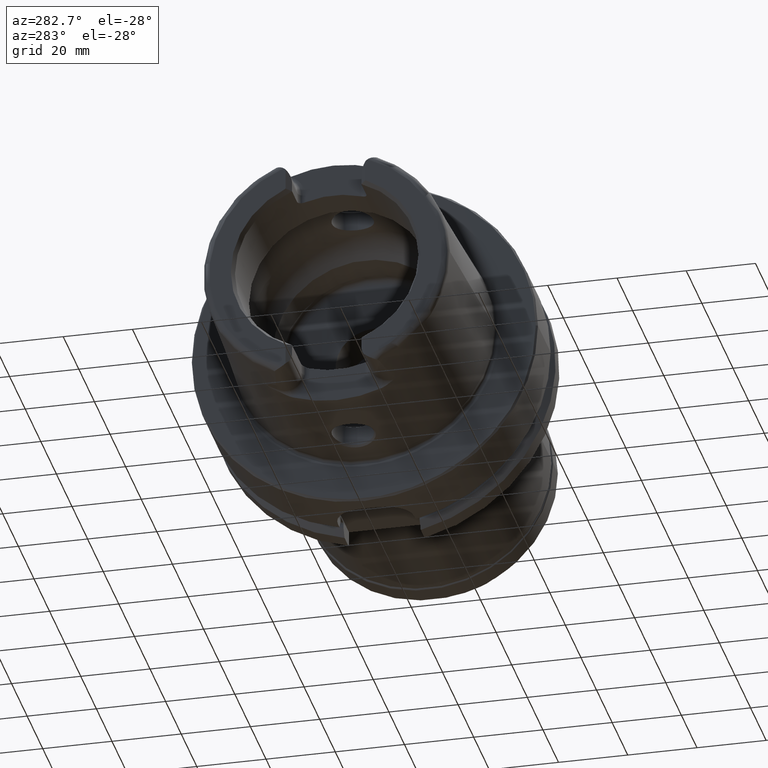
[diagram: clean part render]
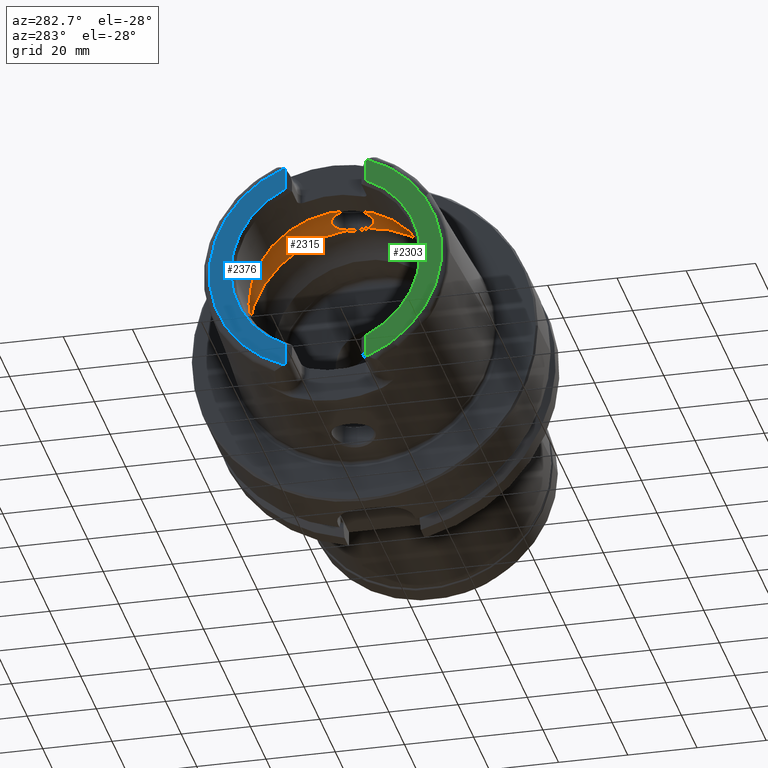
[diagram: same view with three faces highlighted in distinct colors, each labeled with its STEP entity id]
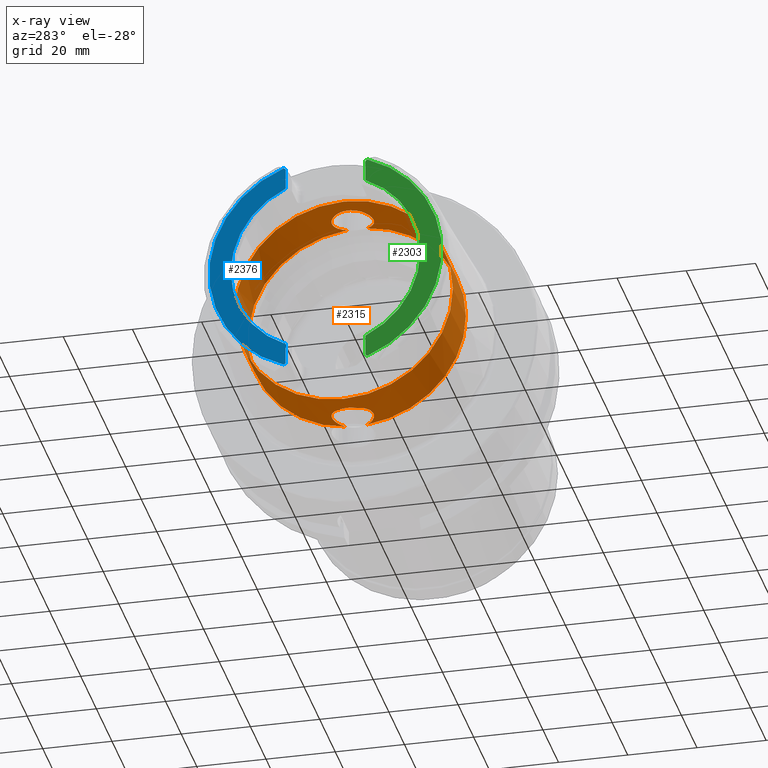
[diagram: x-ray of the same camera — body ghosted, the three highlighted faces saturated]
A machine part, auxiliary view with three faces highlighted in distinct colors.
The next image is the same camera in x-ray (body ghosted, the three faces saturated) — at least one of them is partly hidden behind the body in this view.
Their STEP definitions:

[orange] entity #2315 — the highlighted cylindrical surface (bore or boss wall) has radius 31.5 mm, axis along (-1, 0, 0).
#49=B_SPLINE_CURVE_WITH_KNOTS('',3,(#4149,#4150,#4151,#4152,#4153,#4154,
#4155,#4156,#4157,#4158,#4159,#4160,#4161,#4162,#4163,#4164,#4165,#4166,
#4167,#4168,#4169,#4170,#4171,#4172,#4173,#4174,#4175,#4176,#4177,#4178,
#4179),.UNSPECIFIED.,.F.,.F.,(4,2,2,2,2,2,2,2,2,2,2,3,2,2,4),(-2.42966289251045,
-2.26609494287567,-2.03948128472637,-1.81286762657707,-1.58625396842777,
-1.35964031027847,-1.1330370617835,-0.906433813288535,-0.679830564793567,
-0.453227316298599,-0.226613658149299,0.,0.2266136581493,0.453227316298599,
0.616795265988555),.UNSPECIFIED.);
#54=B_SPLINE_CURVE_WITH_KNOTS('',3,(#4341,#4342,#4343,#4344,#4345,#4346,
#4347,#4348,#4349,#4350,#4351,#4352,#4353,#4354,#4355,#4356,#4357,#4358,
#4359,#4360,#4361,#4362,#4363,#4364,#4365,#4366,#4367,#4368,#4369,#4370,
#4371),.UNSPECIFIED.,.F.,.F.,(4,2,2,3,2,2,2,2,2,2,2,2,2,2,4),(-0.616795265933374,
-0.453227316298598,-0.226613658149299,0.,0.2266136581493,0.453227316298599,
0.679830564793567,0.906433813288535,1.1330370617835,1.35964031027847,1.58625396842777,
1.81286762657707,2.03948128472637,2.26609494287567,2.42966289256562),
 .UNSPECIFIED.);
#203=LINE('',#4389,#312);
#312=VECTOR('',#3046,31.5);
#389=CYLINDRICAL_SURFACE('',#2548,31.5);
#453=FACE_OUTER_BOUND('',#583,.T.);
#583=EDGE_LOOP('',(#1760,#1761,#1762,#1763,#1764,#1765,#1766,#1767,#1768,
#1769));
#756=CIRCLE('',#2549,31.5);
#757=CIRCLE('',#2550,31.5);
#758=CIRCLE('',#2551,31.5);
#759=CIRCLE('',#2552,31.5);
#760=CIRCLE('',#2553,31.5);
#761=CIRCLE('',#2554,31.5);
#982=VERTEX_POINT('',#4137);
#983=VERTEX_POINT('',#4148);
#986=VERTEX_POINT('',#4328);
#988=VERTEX_POINT('',#4340);
#990=VERTEX_POINT('',#4386);
#991=VERTEX_POINT('',#4388);
#992=VERTEX_POINT('',#4390);
#993=VERTEX_POINT('',#4392);
#1273=EDGE_CURVE('',#983,#982,#49,.T.);
#1279=EDGE_CURVE('',#988,#986,#54,.T.);
#1283=EDGE_CURVE('',#990,#986,#756,.T.);
#1284=EDGE_CURVE('',#990,#991,#203,.T.);
#1285=EDGE_CURVE('',#991,#992,#757,.T.);
#1286=EDGE_CURVE('',#992,#993,#758,.T.);
#1287=EDGE_CURVE('',#993,#991,#759,.T.);
#1288=EDGE_CURVE('',#983,#990,#760,.T.);
#1289=EDGE_CURVE('',#988,#982,#761,.T.);
#1760=ORIENTED_EDGE('',*,*,#1279,.T.);
#1761=ORIENTED_EDGE('',*,*,#1283,.F.);
#1762=ORIENTED_EDGE('',*,*,#1284,.T.);
#1763=ORIENTED_EDGE('',*,*,#1285,.T.);
#1764=ORIENTED_EDGE('',*,*,#1286,.T.);
#1765=ORIENTED_EDGE('',*,*,#1287,.T.);
#1766=ORIENTED_EDGE('',*,*,#1284,.F.);
#1767=ORIENTED_EDGE('',*,*,#1288,.F.);
#1768=ORIENTED_EDGE('',*,*,#1273,.T.);
#1769=ORIENTED_EDGE('',*,*,#1289,.F.);
#2315=ADVANCED_FACE('',(#453),#389,.F.);
#2548=AXIS2_PLACEMENT_3D('',#4385,#3042,#3043);
#2549=AXIS2_PLACEMENT_3D('',#4387,#3044,#3045);
#2550=AXIS2_PLACEMENT_3D('',#4391,#3047,#3048);
#2551=AXIS2_PLACEMENT_3D('',#4393,#3049,#3050);
#2552=AXIS2_PLACEMENT_3D('',#4394,#3051,#3052);
#2553=AXIS2_PLACEMENT_3D('',#4395,#3053,#3054);
#2554=AXIS2_PLACEMENT_3D('',#4396,#3055,#3056);
#3042=DIRECTION('center_axis',(-1.,0.,0.));
#3043=DIRECTION('ref_axis',(0.,1.,0.));
#3044=DIRECTION('center_axis',(-1.,0.,0.));
#3045=DIRECTION('ref_axis',(0.,0.,1.));
#3046=DIRECTION('',(-1.,0.,0.));
#3047=DIRECTION('center_axis',(-1.,0.,0.));
#3048=DIRECTION('ref_axis',(0.,0.,1.));
#3049=DIRECTION('center_axis',(-1.,0.,0.));
#3050=DIRECTION('ref_axis',(0.,0.,1.));
#3051=DIRECTION('center_axis',(-1.,0.,0.));
#3052=DIRECTION('ref_axis',(0.,0.,1.));
#3053=DIRECTION('center_axis',(-1.,0.,0.));
#3054=DIRECTION('ref_axis',(0.,0.,1.));
#3055=DIRECTION('center_axis',(-1.,0.,0.));
#3056=DIRECTION('ref_axis',(0.,0.,1.));
#4137=CARTESIAN_POINT('',(-9.74679434480896,2.89893607109041,-31.3663222207471));
#4148=CARTESIAN_POINT('',(-9.74679434480896,-2.89893607109041,-31.3663222207471));
#4149=CARTESIAN_POINT('Ctrl Pts',(-9.74679434480898,-2.8989360710904,-31.3663222207471));
#4150=CARTESIAN_POINT('Ctrl Pts',(-10.0245557799842,-3.40227174537722,-31.3198029657389));
#4151=CARTESIAN_POINT('Ctrl Pts',(-10.3735944692601,-3.85887584349869,-31.2651415110221));
#4152=CARTESIAN_POINT('Ctrl Pts',(-11.289042660848,-4.77432403508655,-31.140708727458));
#4153=CARTESIAN_POINT('Ctrl Pts',(-11.9624834305428,-5.23577180141274,-31.0633803744766));
#4154=CARTESIAN_POINT('Ctrl Pts',(-13.4401908644727,-5.84865855662958,-30.9538382316308));
#4155=CARTESIAN_POINT('Ctrl Pts',(-14.2446211395023,-6.00000000000001,-30.9232921921325));
#4156=CARTESIAN_POINT('Ctrl Pts',(-15.7553788604977,-6.00000000000001,-30.9232921921325));
#4157=CARTESIAN_POINT('Ctrl Pts',(-16.5598091355273,-5.84865855662958,-30.9538382316308));
#4158=CARTESIAN_POINT('Ctrl Pts',(-18.0375165694572,-5.23577180141275,-31.0633803744766));
#4159=CARTESIAN_POINT('Ctrl Pts',(-18.710957339152,-4.77432403508655,-31.140708727458));
#4160=CARTESIAN_POINT('Ctrl Pts',(-19.7742996118461,-3.71098176239249,-31.2852440928545));
#4161=CARTESIAN_POINT('Ctrl Pts',(-20.2357665181958,-3.03753058698362,-31.3619556484746));
#4162=CARTESIAN_POINT('Ctrl Pts',(-20.8486671603361,-1.55978711209124,-31.4700797313679));
#4163=CARTESIAN_POINT('Ctrl Pts',(-21.,-0.755344161649895,-31.5));
#4164=CARTESIAN_POINT('Ctrl Pts',(-21.,0.755344161649892,-31.5));
#4165=CARTESIAN_POINT('Ctrl Pts',(-20.8486671603361,1.55978711209124,-31.4700797313679));
#4166=CARTESIAN_POINT('Ctrl Pts',(-20.2357665181958,3.03753058698362,-31.3619556484746));
#4167=CARTESIAN_POINT('Ctrl Pts',(-19.7742996118461,3.71098176239249,-31.2852440928545));
#4168=CARTESIAN_POINT('Ctrl Pts',(-18.710957339152,4.77432403508655,-31.140708727458));
#4169=CARTESIAN_POINT('Ctrl Pts',(-18.0375165694572,5.23577180141274,-31.0633803744766));
#4170=CARTESIAN_POINT('Ctrl Pts',(-16.5598091355273,5.84865855662958,-30.9538382316308));
#4171=CARTESIAN_POINT('Ctrl Pts',(-15.7553788604977,6.00000000000001,-30.9232921921325));
#4172=CARTESIAN_POINT('Ctrl Pts',(-15.,6.00000000000001,-30.9232921921325));
#4173=CARTESIAN_POINT('Ctrl Pts',(-14.2446211395023,6.00000000000001,-30.9232921921325));
#4174=CARTESIAN_POINT('Ctrl Pts',(-13.4401908644727,5.84865855662958,-30.9538382316308));
#4175=CARTESIAN_POINT('Ctrl Pts',(-11.9624834305428,5.23577180141274,-31.0633803744766));
#4176=CARTESIAN_POINT('Ctrl Pts',(-11.289042660848,4.77432403508655,-31.140708727458));
#4177=CARTESIAN_POINT('Ctrl Pts',(-10.3735944691306,3.85887584336922,-31.2651415110397));
#4178=CARTESIAN_POINT('Ctrl Pts',(-10.0245557801354,3.40227174565105,-31.3198029657135));
#4179=CARTESIAN_POINT('Ctrl Pts',(-9.74679434480898,2.8989360710904,-31.3663222207471));
#4328=CARTESIAN_POINT('',(-9.74679434480896,-2.89893607109042,31.3663222207471));
#4340=CARTESIAN_POINT('',(-9.74679434480896,2.89893607109042,31.3663222207471));
#4341=CARTESIAN_POINT('Ctrl Pts',(-9.74679434480897,2.89893607109041,31.3663222207471));
#4342=CARTESIAN_POINT('Ctrl Pts',(-10.0245557799842,3.40227174537723,31.3198029657389));
#4343=CARTESIAN_POINT('Ctrl Pts',(-10.3735944692601,3.85887584349869,31.2651415110221));
#4344=CARTESIAN_POINT('Ctrl Pts',(-11.289042660848,4.77432403508655,31.140708727458));
#4345=CARTESIAN_POINT('Ctrl Pts',(-11.9624834305428,5.23577180141274,31.0633803744766));
#4346=CARTESIAN_POINT('Ctrl Pts',(-13.4401908644727,5.84865855662958,30.9538382316308));
#4347=CARTESIAN_POINT('Ctrl Pts',(-14.2446211395023,6.00000000000001,30.9232921921325));
#4348=CARTESIAN_POINT('Ctrl Pts',(-15.,6.00000000000001,30.9232921921325));
#4349=CARTESIAN_POINT('Ctrl Pts',(-15.7553788604977,6.00000000000001,30.9232921921325));
#4350=CARTESIAN_POINT('Ctrl Pts',(-16.5598091355273,5.84865855662958,30.9538382316308));
#4351=CARTESIAN_POINT('Ctrl Pts',(-18.0375165694572,5.23577180141274,31.0633803744766));
#4352=CARTESIAN_POINT('Ctrl Pts',(-18.710957339152,4.77432403508655,31.140708727458));
#4353=CARTESIAN_POINT('Ctrl Pts',(-19.7742996118461,3.71098176239249,31.2852440928545));
#4354=CARTESIAN_POINT('Ctrl Pts',(-20.2357665181958,3.03753058698362,31.3619556484746));
#4355=CARTESIAN_POINT('Ctrl Pts',(-20.8486671603361,1.55978711209124,31.4700797313679));
#4356=CARTESIAN_POINT('Ctrl Pts',(-21.,0.755344161649892,31.5));
#4357=CARTESIAN_POINT('Ctrl Pts',(-21.,-0.755344161649894,31.5));
#4358=CARTESIAN_POINT('Ctrl Pts',(-20.8486671603361,-1.55978711209124,31.4700797313679));
#4359=CARTESIAN_POINT('Ctrl Pts',(-20.2357665181958,-3.03753058698362,31.3619556484746));
#4360=CARTESIAN_POINT('Ctrl Pts',(-19.7742996118461,-3.71098176239249,31.2852440928545));
#4361=CARTESIAN_POINT('Ctrl Pts',(-18.710957339152,-4.77432403508655,31.140708727458));
#4362=CARTESIAN_POINT('Ctrl Pts',(-18.0375165694572,-5.23577180141274,31.0633803744766));
#4363=CARTESIAN_POINT('Ctrl Pts',(-16.5598091355273,-5.84865855662958,30.9538382316308));
#4364=CARTESIAN_POINT('Ctrl Pts',(-15.7553788604977,-6.00000000000001,30.9232921921325));
#4365=CARTESIAN_POINT('Ctrl Pts',(-14.2446211395023,-6.00000000000001,30.9232921921325));
#4366=CARTESIAN_POINT('Ctrl Pts',(-13.4401908644727,-5.84865855662958,30.9538382316308));
#4367=CARTESIAN_POINT('Ctrl Pts',(-11.9624834305428,-5.23577180141274,31.0633803744766));
#4368=CARTESIAN_POINT('Ctrl Pts',(-11.289042660848,-4.77432403508655,31.140708727458));
#4369=CARTESIAN_POINT('Ctrl Pts',(-10.3735944691306,-3.85887584336922,31.2651415110397));
#4370=CARTESIAN_POINT('Ctrl Pts',(-10.0245557801353,-3.40227174565106,31.3198029657135));
#4371=CARTESIAN_POINT('Ctrl Pts',(-9.74679434480897,-2.89893607109041,31.3663222207471));
#4385=CARTESIAN_POINT('Origin',(-18.1430342013226,0.,0.));
#4386=CARTESIAN_POINT('',(-9.74679434480896,-31.5,3.85763741731416E-15));
#4387=CARTESIAN_POINT('Origin',(-9.74679434480896,0.,0.));
#4388=CARTESIAN_POINT('',(-26.5392740578363,-31.5,3.85763741731416E-15));
#4389=CARTESIAN_POINT('',(-18.1430342013226,-31.5,3.85763741731416E-15));
#4390=CARTESIAN_POINT('',(-26.5392740578363,31.5,0.));
#4391=CARTESIAN_POINT('Origin',(-26.5392740578363,0.,0.));
#4392=CARTESIAN_POINT('',(-26.5392740578363,-3.85763741731416E-15,-31.5));
#4393=CARTESIAN_POINT('Origin',(-26.5392740578363,0.,0.));
#4394=CARTESIAN_POINT('Origin',(-26.5392740578363,0.,0.));
#4395=CARTESIAN_POINT('Origin',(-9.74679434480896,0.,0.));
#4396=CARTESIAN_POINT('Origin',(-9.74679434480896,0.,0.));

[blue] entity #2376 — the highlighted planar face has unit normal (-1, 0, 0).
#135=PLANE('',#2676);
#179=LINE('',#3670,#288);
#191=LINE('',#3781,#300);
#288=VECTOR('',#2940,10.);
#300=VECTOR('',#3000,10.);
#514=FACE_OUTER_BOUND('',#645,.T.);
#645=EDGE_LOOP('',(#2113,#2114,#2115,#2116,#2117,#2118));
#737=CIRCLE('',#2511,4.88);
#748=CIRCLE('',#2536,4.88);
#818=CIRCLE('',#2667,27.3660254037844);
#819=CIRCLE('',#2671,33.6001839277785);
#928=VERTEX_POINT('',#3663);
#931=VERTEX_POINT('',#3668);
#934=VERTEX_POINT('',#3678);
#955=VERTEX_POINT('',#3778);
#956=VERTEX_POINT('',#3780);
#961=VERTEX_POINT('',#3799);
#1207=EDGE_CURVE('',#931,#928,#179,.T.);
#1211=EDGE_CURVE('',#934,#928,#737,.T.);
#1238=EDGE_CURVE('',#955,#956,#191,.T.);
#1245=EDGE_CURVE('',#955,#961,#748,.T.);
#1441=EDGE_CURVE('',#956,#931,#818,.T.);
#1443=EDGE_CURVE('',#934,#961,#819,.T.);
#2113=ORIENTED_EDGE('',*,*,#1207,.F.);
#2114=ORIENTED_EDGE('',*,*,#1441,.F.);
#2115=ORIENTED_EDGE('',*,*,#1238,.F.);
#2116=ORIENTED_EDGE('',*,*,#1245,.T.);
#2117=ORIENTED_EDGE('',*,*,#1443,.F.);
#2118=ORIENTED_EDGE('',*,*,#1211,.T.);
#2376=ADVANCED_FACE('',(#514),#135,.T.);
#2511=AXIS2_PLACEMENT_3D('',#3679,#2948,#2949);
#2536=AXIS2_PLACEMENT_3D('',#3812,#3009,#3010);
#2667=AXIS2_PLACEMENT_3D('',#5011,#3335,#3336);
#2671=AXIS2_PLACEMENT_3D('',#5016,#3344,#3345);
#2676=AXIS2_PLACEMENT_3D('',#5025,#3355,#3356);
#2940=DIRECTION('',(0.,0.,-1.));
#2948=DIRECTION('center_axis',(-1.,0.,0.));
#2949=DIRECTION('ref_axis',(0.,-0.477884921181368,0.878422450821629));
#3000=DIRECTION('',(0.,0.,-1.));
#3009=DIRECTION('center_axis',(-1.,0.,0.));
#3010=DIRECTION('ref_axis',(0.,1.,0.));
#3335=DIRECTION('center_axis',(-1.,0.,0.));
#3336=DIRECTION('ref_axis',(0.,-1.,0.));
#3344=DIRECTION('center_axis',(1.,0.,0.));
#3345=DIRECTION('ref_axis',(0.,0.,-1.));
#3355=DIRECTION('center_axis',(-1.,0.,0.));
#3356=DIRECTION('ref_axis',(0.,0.,1.));
#3663=CARTESIAN_POINT('',(-50.,11.51,-30.8899431813596));
#3668=CARTESIAN_POINT('',(-50.,11.51,-24.8277918148307));
#3670=CARTESIAN_POINT('',(-50.,11.51,-10.));
#3678=CARTESIAN_POINT('',(-50.,12.0743049948301,-31.355757348091));
#3679=CARTESIAN_POINT('Origin',(-50.,14.89,-27.37));
#3778=CARTESIAN_POINT('',(-50.,11.51,30.8899431813596));
#3780=CARTESIAN_POINT('',(-50.,11.51,24.8277918148307));
#3781=CARTESIAN_POINT('',(-50.,11.51,13.685));
#3799=CARTESIAN_POINT('',(-50.,12.0743049948301,31.355757348091));
#3812=CARTESIAN_POINT('Origin',(-50.,14.89,27.37));
#5011=CARTESIAN_POINT('Origin',(-50.,0.,0.));
#5016=CARTESIAN_POINT('Origin',(-50.,0.,0.));
#5025=CARTESIAN_POINT('Origin',(-50.,33.6001839277785,0.));

[green] entity #2303 — the highlighted planar face has unit normal (-1, 0, 0).
#111=PLANE('',#2522);
#184=LINE('',#3722,#293);
#186=LINE('',#3741,#295);
#293=VECTOR('',#2959,10.);
#295=VECTOR('',#2981,10.);
#441=FACE_OUTER_BOUND('',#569,.T.);
#569=EDGE_LOOP('',(#1675,#1676,#1677,#1678,#1679,#1680));
#740=CIRCLE('',#2518,27.3660254037844);
#743=CIRCLE('',#2523,4.88);
#744=CIRCLE('',#2524,33.6001839277785);
#745=CIRCLE('',#2525,4.88);
#940=VERTEX_POINT('',#3719);
#941=VERTEX_POINT('',#3721);
#943=VERTEX_POINT('',#3727);
#946=VERTEX_POINT('',#3735);
#947=VERTEX_POINT('',#3737);
#948=VERTEX_POINT('',#3739);
#1218=EDGE_CURVE('',#940,#941,#184,.T.);
#1221=EDGE_CURVE('',#941,#943,#740,.T.);
#1225=EDGE_CURVE('',#940,#946,#743,.T.);
#1226=EDGE_CURVE('',#947,#946,#744,.T.);
#1227=EDGE_CURVE('',#947,#948,#745,.T.);
#1228=EDGE_CURVE('',#943,#948,#186,.T.);
#1675=ORIENTED_EDGE('',*,*,#1218,.F.);
#1676=ORIENTED_EDGE('',*,*,#1225,.T.);
#1677=ORIENTED_EDGE('',*,*,#1226,.F.);
#1678=ORIENTED_EDGE('',*,*,#1227,.T.);
#1679=ORIENTED_EDGE('',*,*,#1228,.F.);
#1680=ORIENTED_EDGE('',*,*,#1221,.F.);
#2303=ADVANCED_FACE('',(#441),#111,.T.);
#2518=AXIS2_PLACEMENT_3D('',#3728,#2965,#2966);
#2522=AXIS2_PLACEMENT_3D('',#3734,#2973,#2974);
#2523=AXIS2_PLACEMENT_3D('',#3736,#2975,#2976);
#2524=AXIS2_PLACEMENT_3D('',#3738,#2977,#2978);
#2525=AXIS2_PLACEMENT_3D('',#3740,#2979,#2980);
#2959=DIRECTION('',(0.,0.,1.));
#2965=DIRECTION('center_axis',(-1.,0.,0.));
#2966=DIRECTION('ref_axis',(0.,-1.,0.));
#2973=DIRECTION('center_axis',(-1.,0.,0.));
#2974=DIRECTION('ref_axis',(0.,0.,1.));
#2975=DIRECTION('center_axis',(-1.,0.,0.));
#2976=DIRECTION('ref_axis',(0.,-1.,0.));
#2977=DIRECTION('center_axis',(1.,0.,0.));
#2978=DIRECTION('ref_axis',(0.,0.,-1.));
#2979=DIRECTION('center_axis',(-1.,0.,0.));
#2980=DIRECTION('ref_axis',(0.,0.477884921181369,-0.878422450821629));
#2981=DIRECTION('',(0.,0.,1.));
#3719=CARTESIAN_POINT('',(-50.,-11.51,-30.8899431813596));
#3721=CARTESIAN_POINT('',(-50.,-11.51,-24.8277918148307));
#3722=CARTESIAN_POINT('',(-50.,-11.51,-13.685));
#3727=CARTESIAN_POINT('',(-50.,-11.51,24.8277918148307));
#3728=CARTESIAN_POINT('Origin',(-50.,0.,0.));
#3734=CARTESIAN_POINT('Origin',(-50.,33.6001839277785,0.));
#3735=CARTESIAN_POINT('',(-50.,-12.0743049948301,-31.355757348091));
#3736=CARTESIAN_POINT('Origin',(-50.,-14.89,-27.37));
#3737=CARTESIAN_POINT('',(-50.,-12.0743049948301,31.355757348091));
#3738=CARTESIAN_POINT('Origin',(-50.,0.,0.));
#3739=CARTESIAN_POINT('',(-50.,-11.51,30.8899431813596));
#3740=CARTESIAN_POINT('Origin',(-50.,-14.89,27.37));
#3741=CARTESIAN_POINT('',(-50.,-11.51,9.));